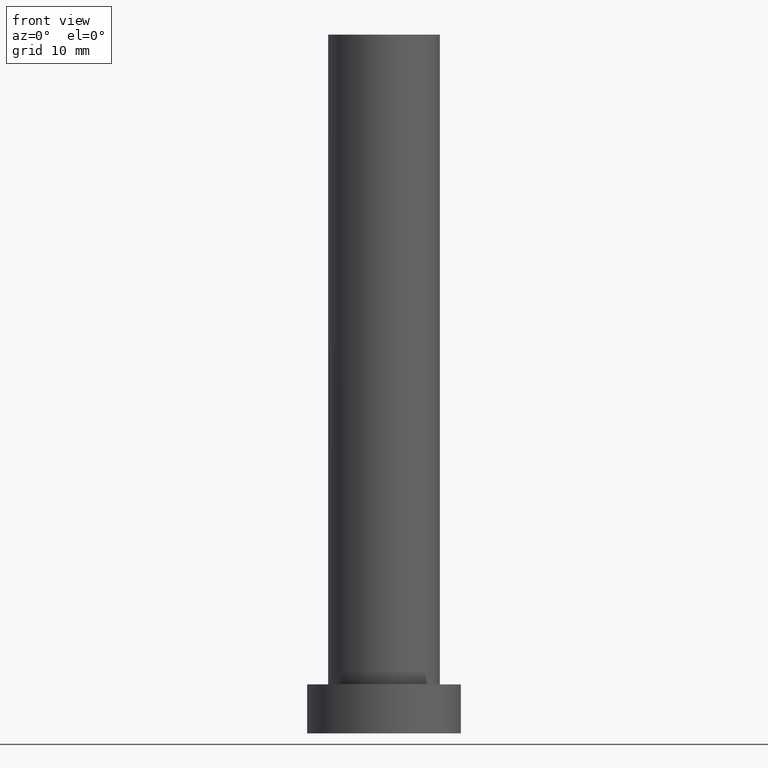
[diagram: clean part render]
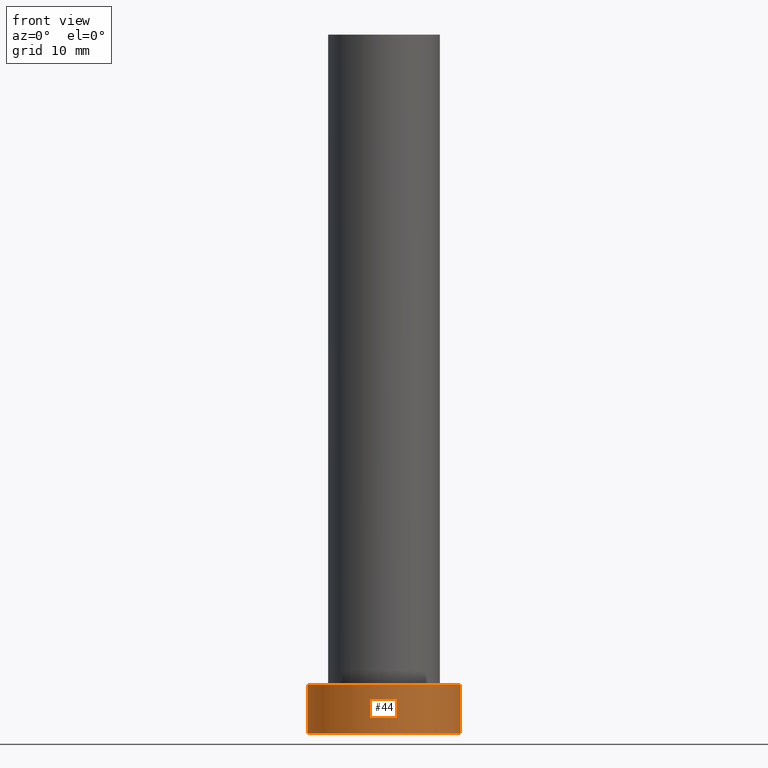
[diagram: same view with one face highlighted and labeled with its STEP entity id]
A machine part, front view. The second image highlights one B-rep face of the part: STEP entity #44.
In plain terms, the highlighted cylindrical surface (partial cylindrical patch) has radius 11 mm, axis along (-0, -0, -1).
Its self-contained STEP definition (entity closure, byte-faithful):
#6 = VERTEX_POINT ( 'NONE', #197 ) ;
#15 = AXIS2_PLACEMENT_3D ( 'NONE', #146, #184, #98 ) ;
#34 = FACE_OUTER_BOUND ( 'NONE', #178, .T. ) ;
#37 = CARTESIAN_POINT ( 'NONE',  ( -11.00000000000000000, 0.000000000000000000, 0.000000000000000000 ) ) ;
#39 = CARTESIAN_POINT ( 'NONE',  ( 11.00000000000000000, 1.347111479062088405E-15, 7.000000000000000000 ) ) ;
#44 = ADVANCED_FACE ( 'NONE', ( #34 ), #129, .T. ) ;
#62 = DIRECTION ( 'NONE',  ( -0.000000000000000000, -0.000000000000000000, -1.000000000000000000 ) ) ;
#66 = VECTOR ( 'NONE', #62, 1000.000000000000000 ) ;
#73 = VERTEX_POINT ( 'NONE', #39 ) ;
#75 = CARTESIAN_POINT ( 'NONE',  ( 11.00000000000000000, 1.347111479062088405E-15, 7.000000000000000000 ) ) ;
#81 = DIRECTION ( 'NONE',  ( 0.000000000000000000, 0.000000000000000000, 1.000000000000000000 ) ) ;
#92 = EDGE_CURVE ( 'NONE', #6, #199, #113, .T. ) ;
#98 = DIRECTION ( 'NONE',  ( -1.000000000000000000, 0.000000000000000000, 0.000000000000000000 ) ) ;
#113 = LINE ( 'NONE', #205, #251 ) ;
#118 = CIRCLE ( 'NONE', #210, 11.00000000000000000 ) ;
#119 = VERTEX_POINT ( 'NONE', #229 ) ;
#125 = ORIENTED_EDGE ( 'NONE', *, *, #163, .T. ) ;
#129 = CYLINDRICAL_SURFACE ( 'NONE', #15, 11.00000000000000000 ) ;
#130 = DIRECTION ( 'NONE',  ( -0.000000000000000000, -0.000000000000000000, -1.000000000000000000 ) ) ;
#145 = DIRECTION ( 'NONE',  ( 0.000000000000000000, 0.000000000000000000, 1.000000000000000000 ) ) ;
#146 = CARTESIAN_POINT ( 'NONE',  ( 0.000000000000000000, 0.000000000000000000, 7.000000000000000000 ) ) ;
#155 = ORIENTED_EDGE ( 'NONE', *, *, #92, .T. ) ;
#156 = ORIENTED_EDGE ( 'NONE', *, *, #216, .F. ) ;
#160 = ORIENTED_EDGE ( 'NONE', *, *, #214, .F. ) ;
#163 = EDGE_CURVE ( 'NONE', #199, #119, #208, .T. ) ;
#169 = CARTESIAN_POINT ( 'NONE',  ( 0.000000000000000000, 0.000000000000000000, 0.000000000000000000 ) ) ;
#178 = EDGE_LOOP ( 'NONE', ( #160, #156, #155, #125 ) ) ;
#180 = AXIS2_PLACEMENT_3D ( 'NONE', #169, #145, #226 ) ;
#184 = DIRECTION ( 'NONE',  ( -0.000000000000000000, -0.000000000000000000, -1.000000000000000000 ) ) ;
#188 = DIRECTION ( 'NONE',  ( 1.000000000000000000, 0.000000000000000000, 0.000000000000000000 ) ) ;
#197 = CARTESIAN_POINT ( 'NONE',  ( -11.00000000000000000, 0.000000000000000000, 7.000000000000000000 ) ) ;
#199 = VERTEX_POINT ( 'NONE', #37 ) ;
#205 = CARTESIAN_POINT ( 'NONE',  ( -11.00000000000000000, 0.000000000000000000, 7.000000000000000000 ) ) ;
#208 = CIRCLE ( 'NONE', #180, 11.00000000000000000 ) ;
#209 = CARTESIAN_POINT ( 'NONE',  ( 0.000000000000000000, 0.000000000000000000, 7.000000000000000000 ) ) ;
#210 = AXIS2_PLACEMENT_3D ( 'NONE', #209, #81, #188 ) ;
#214 = EDGE_CURVE ( 'NONE', #73, #119, #249, .T. ) ;
#216 = EDGE_CURVE ( 'NONE', #6, #73, #118, .T. ) ;
#226 = DIRECTION ( 'NONE',  ( 1.000000000000000000, 0.000000000000000000, 0.000000000000000000 ) ) ;
#229 = CARTESIAN_POINT ( 'NONE',  ( 11.00000000000000000, 1.347111479062088405E-15, 0.000000000000000000 ) ) ;
#249 = LINE ( 'NONE', #75, #66 ) ;
#251 = VECTOR ( 'NONE', #130, 1000.000000000000000 ) ;